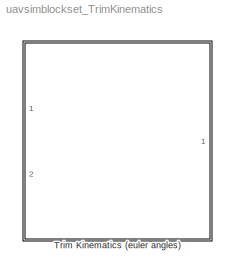
MODEL uavsimblockset_TrimKinematics
KIND library
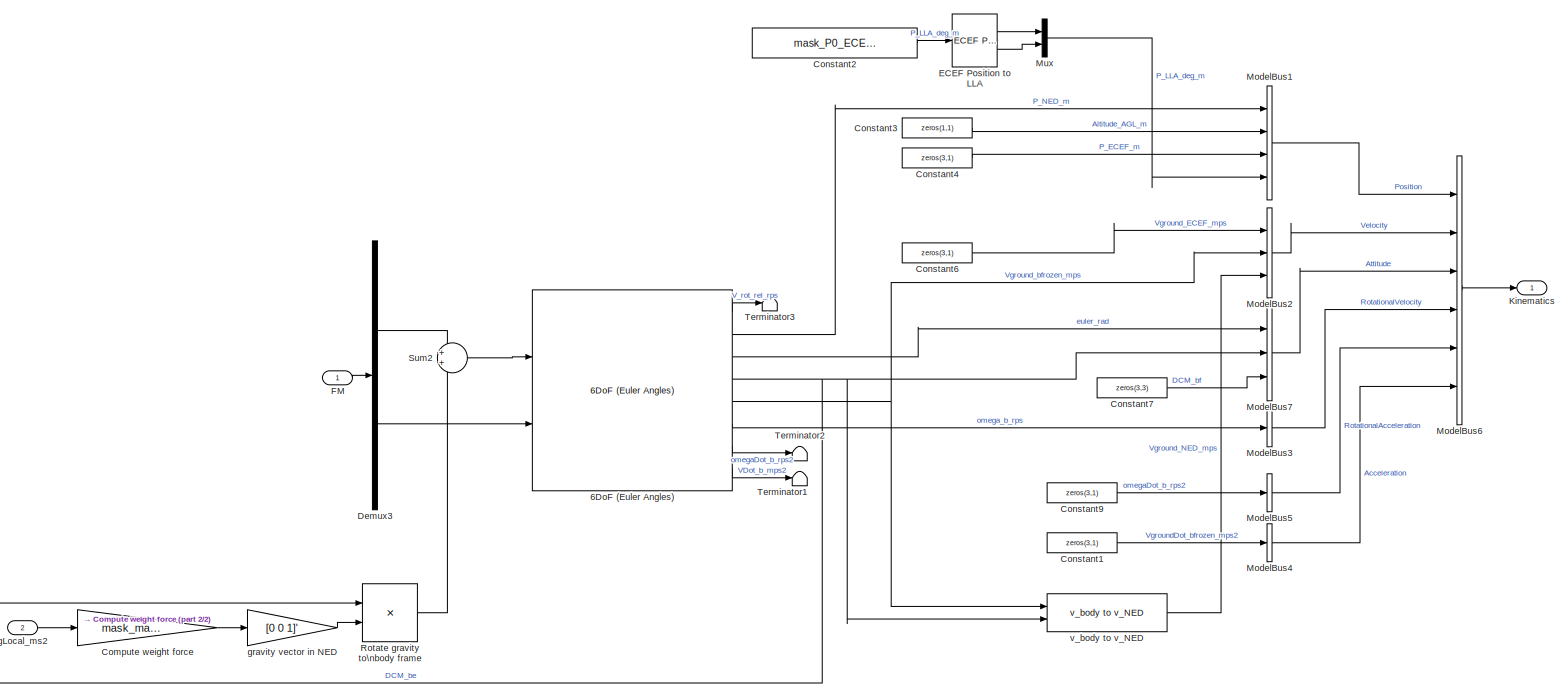
[diagram: Trim Kinematics (euler angles) - part 1/2, most of the canvas]
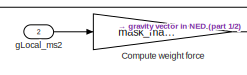
[diagram: Trim Kinematics (euler angles) - part 2/2, bottom left region]
BLOCK [SubSystem] Trim Kinematics (euler angles)
  FunctionWithSeparateData = off
  MaskHideContents = off
  MinAlgLoopOccurrences = off
  Opaque = off
  Ports = [2, 1]
  PropExecContextOutsideSubsystem = off
  RTWSystemCode = Auto
  RequestExecContextInheritance = off
  SID = 3233
BLOCK [Reference] Trim Kinematics (euler angles)/6DoF (Euler Angles)  REF=aerolib6dof2/6DoF (Euler Angles)
  Ports = [2, 8]
  SID = 3236
  SourceBlock = aerolib6dof2/6DoF (Euler Angles)
  SourceType = 6DoF EoM (Body Axis)
  Vm_0 = mask_uvw0
  eul_0 = mask_phithetapsi0
  inertia = mask_inertia
  inertia_e = eye(3)
  inertia_f = 2*eye(3)
  k_quat = 1.0
  mass_0 = mask_mass
  mass_e = 0.5
  mass_f = 2.0
  mtype = Fixed
  pm_0 = mask_omega0
  rep = Euler Angles
  units = Metric (MKS)
  xme_0 = mask_P0_ECEF_m
BLOCK [Gain] Trim Kinematics (euler angles)/Compute weight force
  Gain = mask_mass
  OutDataTypeStr = Inherit: Inherit via internal rule
  ParamDataTypeStr = Inherit: Inherit via internal rule
  SID = 3260
  SaturateOnIntegerOverflow = off
BLOCK [Constant] Trim Kinematics (euler angles)/Constant1
  SID = 3237
  Value = zeros(3,1)
BLOCK [Constant] Trim Kinematics (euler angles)/Constant2
  SID = 3238
  Value = mask_P0_ECEF_m
BLOCK [Constant] Trim Kinematics (euler angles)/Constant3
  SID = 3239
  Value = zeros(1,1)
BLOCK [Constant] Trim Kinematics (euler angles)/Constant4
  SID = 3240
  Value = zeros(3,1)
BLOCK [Constant] Trim Kinematics (euler angles)/Constant6
  SID = 3242
  Value = zeros(3,1)
BLOCK [Constant] Trim Kinematics (euler angles)/Constant7
  SID = 3243
  Value = zeros(3,3)
BLOCK [Constant] Trim Kinematics (euler angles)/Constant9
  SID = 3244
  Value = zeros(3,1)
BLOCK [Demux] Trim Kinematics (euler angles)/Demux3
  Outputs = [3,3]
  Ports = [1, 2]
  SID = 3245
BLOCK [Reference] Trim Kinematics (euler angles)/ECEF Position to LLA  REF=aerolibtransform2/ECEF Position to LLA
  F = 1/298.257223563
  Ports = [1, 2]
  R = 6378137
  SID = 3905
  SourceBlock = aerolibtransform2/ECEF Position to LLA
  SourceType = ECEF to LLA
  ptype = Earth (WGS84)
  units = Metric (MKS)
BLOCK [Inport] Trim Kinematics (euler angles)/FM
  IconDisplay = Port number
  SID = 3234
BLOCK [Outport] Trim Kinematics (euler angles)/Kinematics
  IconDisplay = Port number
  OutDataTypeStr = Bus: Kinematics
  SID = 3258
BLOCK [BusCreator] Trim Kinematics (euler angles)/ModelBus1
  DisplayOption = bar
  Inputs = 'P_NED_m','Altitude_AGL_m','P_ECEF_m','P_LLA_deg_m'
  NonVirtualBus = on
  OutDataTypeStr = Bus: Position
  Ports = [4, 1]
  SID = 3246
BLOCK [BusCreator] Trim Kinematics (euler angles)/ModelBus2
  DisplayOption = bar
  Inputs = 3
  NonVirtualBus = on
  OutDataTypeStr = Bus: Velocity
  Ports = [3, 1]
  SID = 3247
BLOCK [BusCreator] Trim Kinematics (euler angles)/ModelBus3
  DisplayOption = bar
  Inputs = 'omega_b_rps'
  NonVirtualBus = on
  OutDataTypeStr = Bus: RotationalVelocity
  Ports = [1, 1]
  SID = 3248
BLOCK [BusCreator] Trim Kinematics (euler angles)/ModelBus4
  DisplayOption = bar
  Inputs = 1
  NonVirtualBus = on
  OutDataTypeStr = Bus: Acceleration
  Ports = [1, 1]
  SID = 3249
BLOCK [BusCreator] Trim Kinematics (euler angles)/ModelBus5
  DisplayOption = bar
  Inputs = 'omegaDot_b_rps2'
  NonVirtualBus = on
  OutDataTypeStr = Bus: RotationalAcceleration
  Ports = [1, 1]
  SID = 3250
BLOCK [BusCreator] Trim Kinematics (euler angles)/ModelBus6
  DisplayOption = bar
  Inputs = 6
  OutDataTypeStr = Bus: Kinematics
  Ports = [6, 1]
  SID = 3251
BLOCK [BusCreator] Trim Kinematics (euler angles)/ModelBus7
  DisplayOption = bar
  Inputs = 'euler_rad','DCM_be','DCM_bf'
  NonVirtualBus = on
  OutDataTypeStr = Bus: Attitude
  Ports = [3, 1]
  SID = 3252
BLOCK [Mux] Trim Kinematics (euler angles)/Mux
  DisplayOption = bar
  Inputs = 2
  Ports = [2, 1]
  SID = 3906
BLOCK [Product] Trim Kinematics (euler angles)/Rotate gravity to\nbody frame
  InputSameDT = off
  Multiplication = Matrix(*)
  OutDataTypeStr = Inherit: Inherit via internal rule
  Ports = [2, 1]
  RndMeth = Floor
  SID = 3261
  SaturateOnIntegerOverflow = off
BLOCK [Sum] Trim Kinematics (euler angles)/Sum2
  IconShape = round
  Ports = [2, 1]
  SID = 3253
BLOCK [Terminator] Trim Kinematics (euler angles)/Terminator1
  SID = 3254
BLOCK [Terminator] Trim Kinematics (euler angles)/Terminator2
  SID = 3255
BLOCK [Terminator] Trim Kinematics (euler angles)/Terminator3
  SID = 3256
BLOCK [Inport] Trim Kinematics (euler angles)/gLocal_ms2
  IconDisplay = Port number
  Port = 2
  SID = 3235
BLOCK [Gain] Trim Kinematics (euler angles)/gravity vector in NED
  Gain = [0 0 1]'
  OutDataTypeStr = Inherit: Inherit via internal rule
  ParamDataTypeStr = Inherit: Inherit via internal rule
  SID = 3262
  SaturateOnIntegerOverflow = off
BLOCK [Reference] Trim Kinematics (euler angles)/v_body to v_NED  REF=uavsimblockset_vbody2vNED/v_body to v_NED
  Ports = [2, 1]
  SID = 3257
  SourceBlock = uavsimblockset_vbody2vNED/v_body to v_NED
  SourceType = SubSystem
LINE Trim Kinematics (euler angles)/6DoF (Euler Angles):1 -> Trim Kinematics (euler angles)/Terminator3:1
LINE Trim Kinematics (euler angles)/6DoF (Euler Angles):2 -> Trim Kinematics (euler angles)/ModelBus1:1
LINE Trim Kinematics (euler angles)/6DoF (Euler Angles):3 -> Trim Kinematics (euler angles)/ModelBus7:1
NET Trim Kinematics (euler angles)/6DoF (Euler Angles):4 -> Trim Kinematics (euler angles)/ModelBus7:2, Trim Kinematics (euler angles)/Rotate gravity to\nbody frame:1, Trim Kinematics (euler angles)/v_body to v_NED:2
NET Trim Kinematics (euler angles)/6DoF (Euler Angles):5 -> Trim Kinematics (euler angles)/ModelBus2:2, Trim Kinematics (euler angles)/v_body to v_NED:1
LINE Trim Kinematics (euler angles)/6DoF (Euler Angles):6 -> Trim Kinematics (euler angles)/ModelBus3:1
LINE Trim Kinematics (euler angles)/6DoF (Euler Angles):7 -> Trim Kinematics (euler angles)/Terminator2:1
LINE Trim Kinematics (euler angles)/6DoF (Euler Angles):8 -> Trim Kinematics (euler angles)/Terminator1:1
LINE Trim Kinematics (euler angles)/Compute weight force:1 -> Trim Kinematics (euler angles)/gravity vector in NED:1
LINE Trim Kinematics (euler angles)/Constant1:1 -> Trim Kinematics (euler angles)/ModelBus4:1
LINE Trim Kinematics (euler angles)/Constant2:1 -> Trim Kinematics (euler angles)/ECEF Position to LLA:1
LINE Trim Kinematics (euler angles)/Constant3:1 -> Trim Kinematics (euler angles)/ModelBus1:2
LINE Trim Kinematics (euler angles)/Constant4:1 -> Trim Kinematics (euler angles)/ModelBus1:3
LINE Trim Kinematics (euler angles)/Constant6:1 -> Trim Kinematics (euler angles)/ModelBus2:1
LINE Trim Kinematics (euler angles)/Constant7:1 -> Trim Kinematics (euler angles)/ModelBus7:3
LINE Trim Kinematics (euler angles)/Constant9:1 -> Trim Kinematics (euler angles)/ModelBus5:1
LINE Trim Kinematics (euler angles)/Demux3:1 -> Trim Kinematics (euler angles)/Sum2:1
LINE Trim Kinematics (euler angles)/Demux3:2 -> Trim Kinematics (euler angles)/6DoF (Euler Angles):2
LINE Trim Kinematics (euler angles)/ECEF Position to LLA:1 -> Trim Kinematics (euler angles)/Mux:1
LINE Trim Kinematics (euler angles)/ECEF Position to LLA:2 -> Trim Kinematics (euler angles)/Mux:2
LINE Trim Kinematics (euler angles)/FM:1 -> Trim Kinematics (euler angles)/Demux3:1
LINE Trim Kinematics (euler angles)/ModelBus1:1 -> Trim Kinematics (euler angles)/ModelBus6:1
LINE Trim Kinematics (euler angles)/ModelBus2:1 -> Trim Kinematics (euler angles)/ModelBus6:2
LINE Trim Kinematics (euler angles)/ModelBus3:1 -> Trim Kinematics (euler angles)/ModelBus6:4
LINE Trim Kinematics (euler angles)/ModelBus4:1 -> Trim Kinematics (euler angles)/ModelBus6:6
LINE Trim Kinematics (euler angles)/ModelBus5:1 -> Trim Kinematics (euler angles)/ModelBus6:5
LINE Trim Kinematics (euler angles)/ModelBus6:1 -> Trim Kinematics (euler angles)/Kinematics:1
LINE Trim Kinematics (euler angles)/ModelBus7:1 -> Trim Kinematics (euler angles)/ModelBus6:3
LINE Trim Kinematics (euler angles)/Mux:1 -> Trim Kinematics (euler angles)/ModelBus1:4
LINE Trim Kinematics (euler angles)/Rotate gravity to\nbody frame:1 -> Trim Kinematics (euler angles)/Sum2:2
LINE Trim Kinematics (euler angles)/Sum2:1 -> Trim Kinematics (euler angles)/6DoF (Euler Angles):1
LINE Trim Kinematics (euler angles)/gLocal_ms2:1 -> Trim Kinematics (euler angles)/Compute weight force:1
LINE Trim Kinematics (euler angles)/gravity vector in NED:1 -> Trim Kinematics (euler angles)/Rotate gravity to\nbody frame:2
LINE Trim Kinematics (euler angles)/v_body to v_NED:1 -> Trim Kinematics (euler angles)/ModelBus2:3
note: NET lines group one-source signal fan-out (src -> all destinations, sorted); 1:1 wires keep LINE
